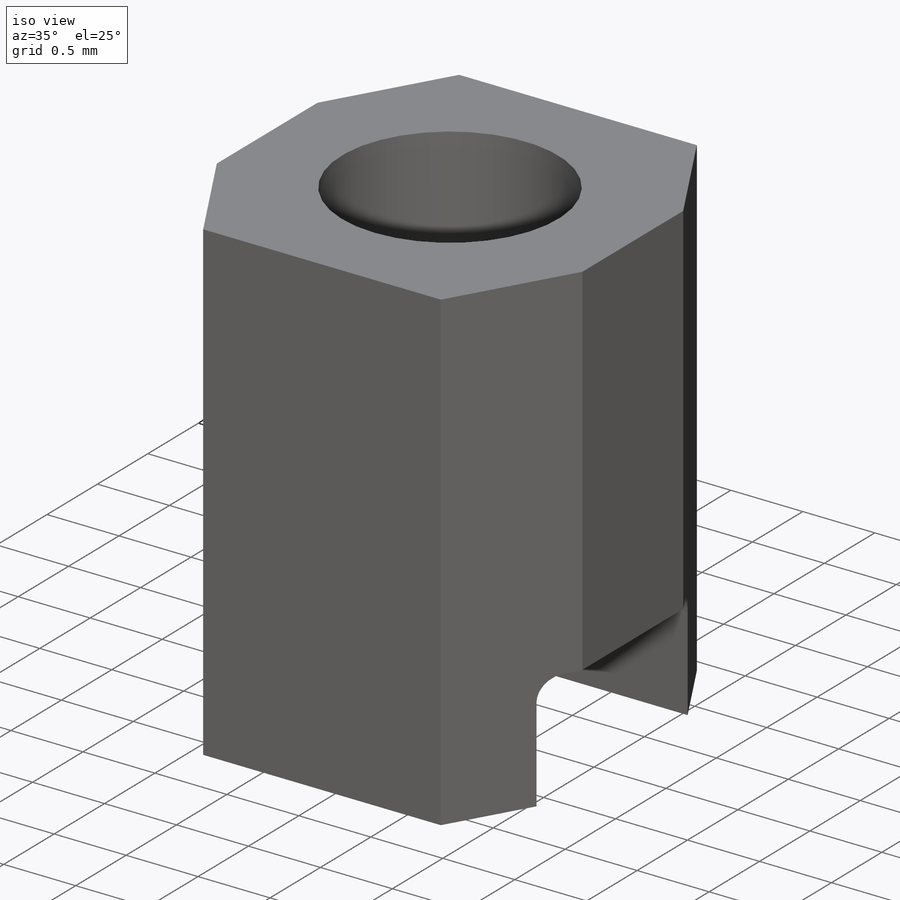
[diagram: iso view]
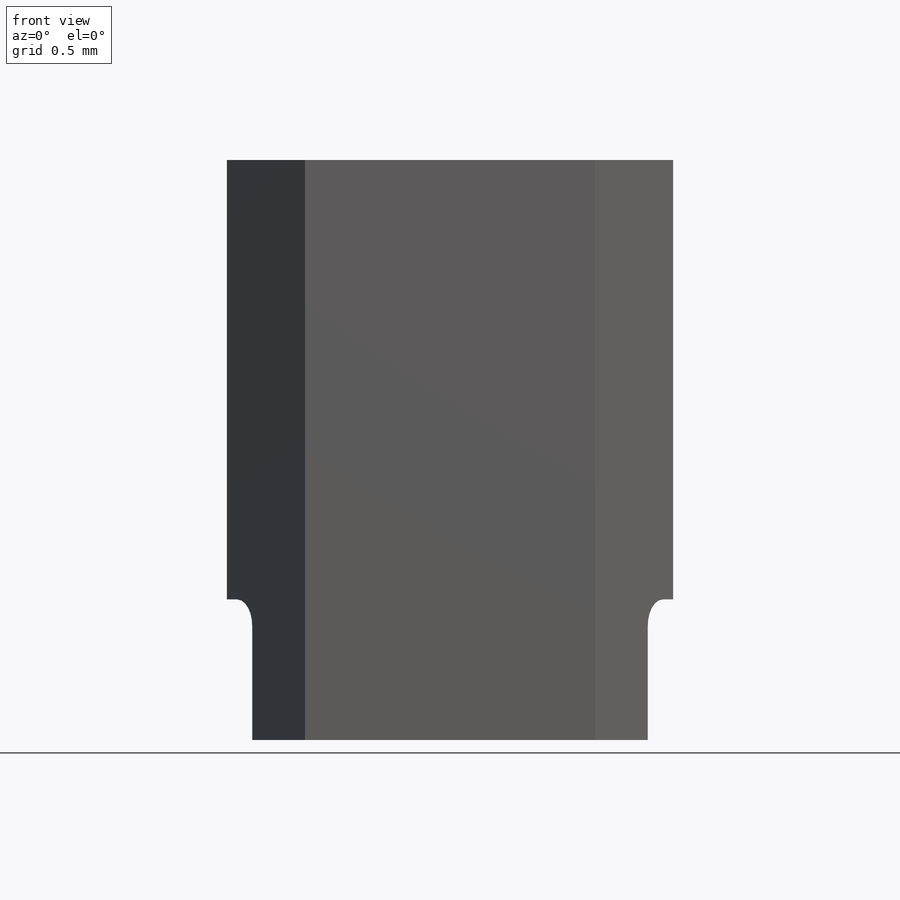
[diagram: front view]
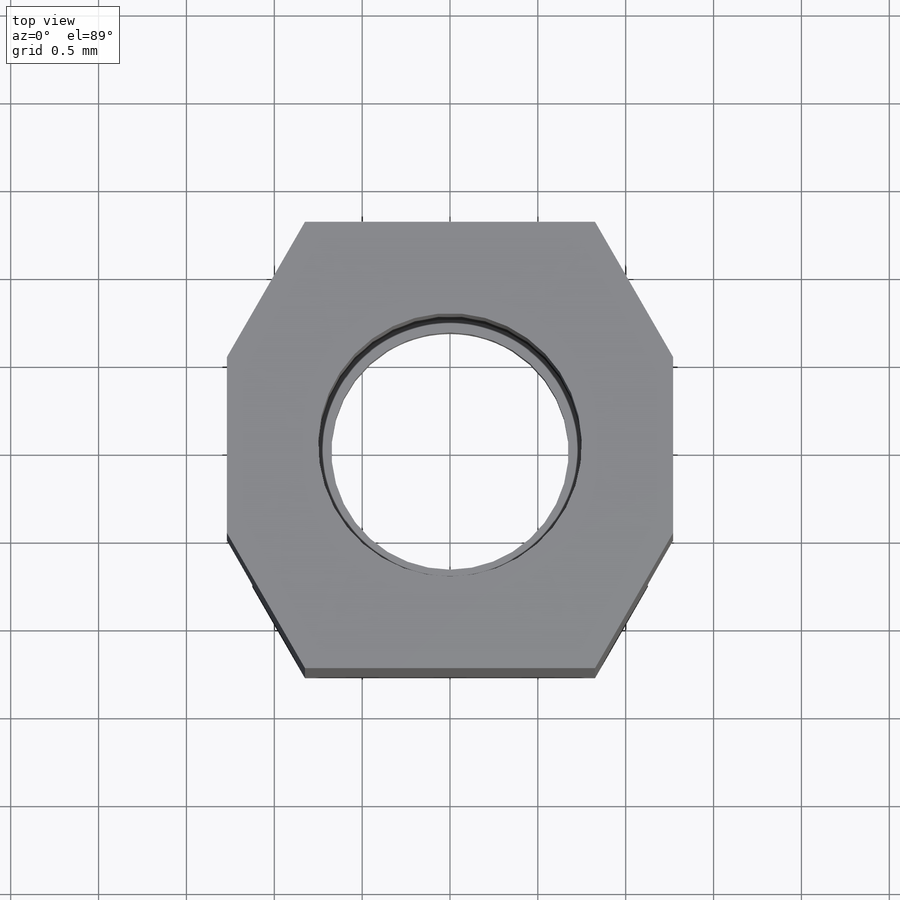
[diagram: top view]
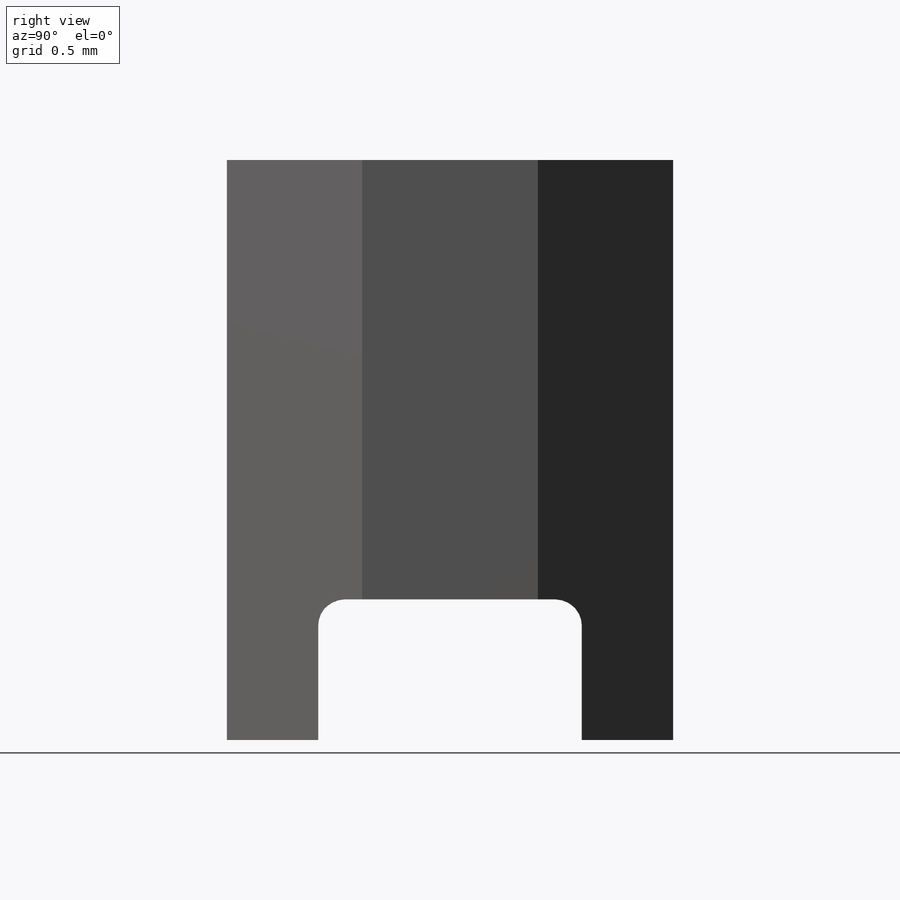
[diagram: right view]
SOLIDWORKS PART (.sldprt)
format: sldprt  version: not decoded by parser v0  size: 143,360 bytes
history: native  units: mm
features: sketch x3, cut_extrude x2, material x1, extrude x1 (+11 scaffold rows collapsed)
feature tree (18):
  scaffold x11  (default folders/planes/origin — collapsed)
  material  "Material <not specified>"
  sketch  "Sketch1"  dims[c1.D1=1.35mm c1.D2=1.0mm c1.D3=2.54mm c1.D4=2.54mm c1.D5=~0.778303mm c2.D5=120.0deg c2.D6=1.27mm]
  extrude  "Boss-Extrude1"  Depth=3.3mm
  sketch  "Sketch2"  dims[D4=0.15mm D1=1.5mm D2=0.8mm D3=0.75mm]
  cut_extrude  "Cut-Extrude1"  [1 undecoded]
  sketch  "Sketch3"  dims[D1=1.5mm]
  cut_extrude  "Cut-Extrude2"  Depth=2mm
decode coverage: 5 of 6 modeling features carry decoded parameters
note: ~ marks probable driven/reference dimensions
note: 1 parameter value undecoded
note: suppression state not decoded; provenance and decode notes live in map.json
